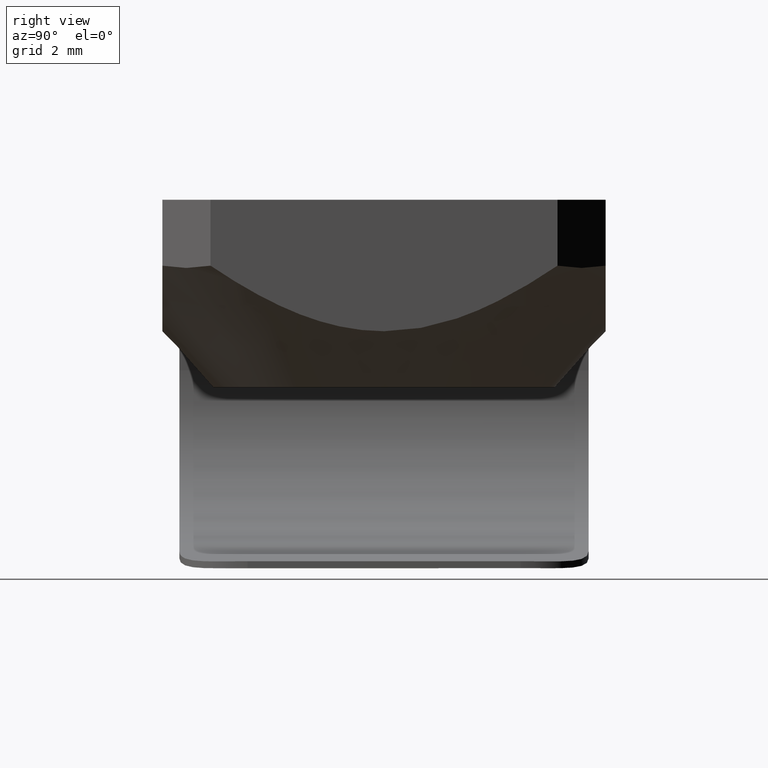
[diagram: clean part render]
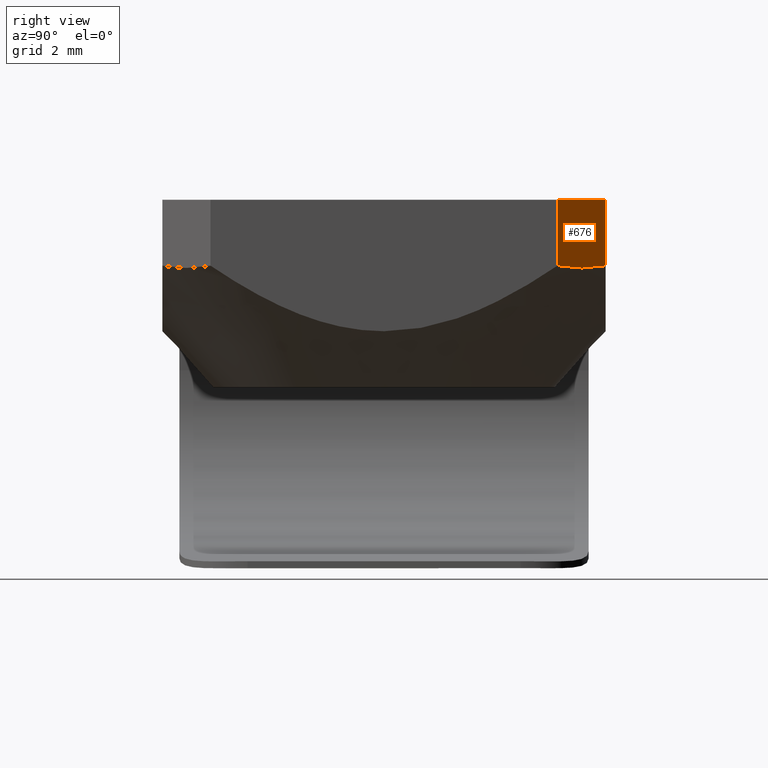
[diagram: same view with one face highlighted and labeled with its STEP entity id]
A machine part, right view. The second image highlights one B-rep face of the part: STEP entity #676.
In plain terms, the highlighted planar face has unit normal (0.7071, 0.7071, 0).
Its self-contained STEP definition (entity closure, byte-faithful):
#20 = VECTOR ( 'NONE', #470, 1000.000000000000114 ) ;
#23 = VERTEX_POINT ( 'NONE', #446 ) ;
#29 = EDGE_LOOP ( 'NONE', ( #310, #774, #194, #423 ) ) ;
#70 = DIRECTION ( 'NONE',  ( -0.7071067811865474617, 0.7071067811865474617, 0.0000000000000000000 ) ) ;
#105 = VERTEX_POINT ( 'NONE', #609 ) ;
#122 = EDGE_CURVE ( 'NONE', #105, #375, #343, .T. ) ;
#143 = EDGE_CURVE ( 'NONE', #23, #202, #800, .T. ) ;
#173 = EDGE_CURVE ( 'NONE', #375, #23, #331, .T. ) ;
#194 = ORIENTED_EDGE ( 'NONE', *, *, #835, .T. ) ;
#198 = CARTESIAN_POINT ( 'NONE',  ( 6.500000000000000888, 5.085786437626907741, 0.0000000000000000000 ) ) ;
#202 = VERTEX_POINT ( 'NONE', #339 ) ;
#273 = CARTESIAN_POINT ( 'NONE',  ( 5.085786437626906853, 6.500000000000003553, 0.0000000000000000000 ) ) ;
#310 = ORIENTED_EDGE ( 'NONE', *, *, #173, .F. ) ;
#331 = LINE ( 'NONE', #833, #20 ) ;
#337 = PLANE ( 'NONE',  #385 ) ;
#339 = CARTESIAN_POINT ( 'NONE',  ( 5.085786437677108474, 6.500000000012474466, -1.933334202242375177 ) ) ;
#343 = LINE ( 'NONE', #198, #846 ) ;
#367 = CARTESIAN_POINT ( 'NONE',  ( 6.500000000000000888, 5.085786437626908629, 0.0000000000000000000 ) ) ;
#375 = VERTEX_POINT ( 'NONE', #367 ) ;
#385 = AXIS2_PLACEMENT_3D ( 'NONE', #471, #533, #70 ) ;
#401 = FACE_OUTER_BOUND ( 'NONE', #29, .T. ) ;
#407 = CARTESIAN_POINT ( 'NONE',  ( 6.028595479215633546, 5.557190958371792888, -2.021894486489666409 ) ) ;
#411 = DIRECTION ( 'NONE',  ( -0.0000000000000000000, -0.0000000000000000000, 1.000000000000000000 ) ) ;
#423 = ORIENTED_EDGE ( 'NONE', *, *, #143, .F. ) ;
#446 = CARTESIAN_POINT ( 'NONE',  ( 5.085786437626906853, 6.500000000000003553, 0.0000000000000000000 ) ) ;
#470 = DIRECTION ( 'NONE',  ( -0.7071067811865474617, 0.7071067811865474617, 0.0000000000000000000 ) ) ;
#471 = CARTESIAN_POINT ( 'NONE',  ( 6.500000000000002665, 5.085786437626907741, 0.0000000000000000000 ) ) ;
#474 = CARTESIAN_POINT ( 'NONE',  ( 6.500000000012471801, 5.085786437614437716, -1.933334202284715309 ) ) ;
#533 = DIRECTION ( 'NONE',  ( 0.7071067811865475727, 0.7071067811865475727, 0.0000000000000000000 ) ) ;
#543 = DIRECTION ( 'NONE',  ( -0.0000000000000000000, 0.0000000000000000000, -1.000000000000000000 ) ) ;
#609 = CARTESIAN_POINT ( 'NONE',  ( 6.500000000012471801, 5.085786437614437716, -1.933334202284715309 ) ) ;
#676 = ADVANCED_FACE ( 'NONE', ( #401 ), #337, .T. ) ;
#684 = CARTESIAN_POINT ( 'NONE',  ( 5.557190958393293911, 6.028595479233616494, -2.021894486500614985 ) ) ;
#721 = VECTOR ( 'NONE', #543, 1000.000000000000000 ) ;
#753 = CARTESIAN_POINT ( 'NONE',  ( 5.085786437677108474, 6.500000000012474466, -1.933334202242375177 ) ) ;
#774 = ORIENTED_EDGE ( 'NONE', *, *, #122, .F. ) ;
#800 = LINE ( 'NONE', #273, #721 ) ;
#833 = CARTESIAN_POINT ( 'NONE',  ( 6.500000000000002665, 5.085786437626907741, 0.0000000000000000000 ) ) ;
#835 = EDGE_CURVE ( 'NONE', #105, #202, #878, .T. ) ;
#846 = VECTOR ( 'NONE', #411, 1000.000000000000000 ) ;
#878 = B_SPLINE_CURVE_WITH_KNOTS ( 'NONE', 3,
 ( #474, #407, #684, #753 ),
 .UNSPECIFIED., .F., .F.,
 ( 4, 4 ),
 ( 1.619525838437646925E-14, 0.002000000000007150572 ),
 .UNSPECIFIED. ) ;